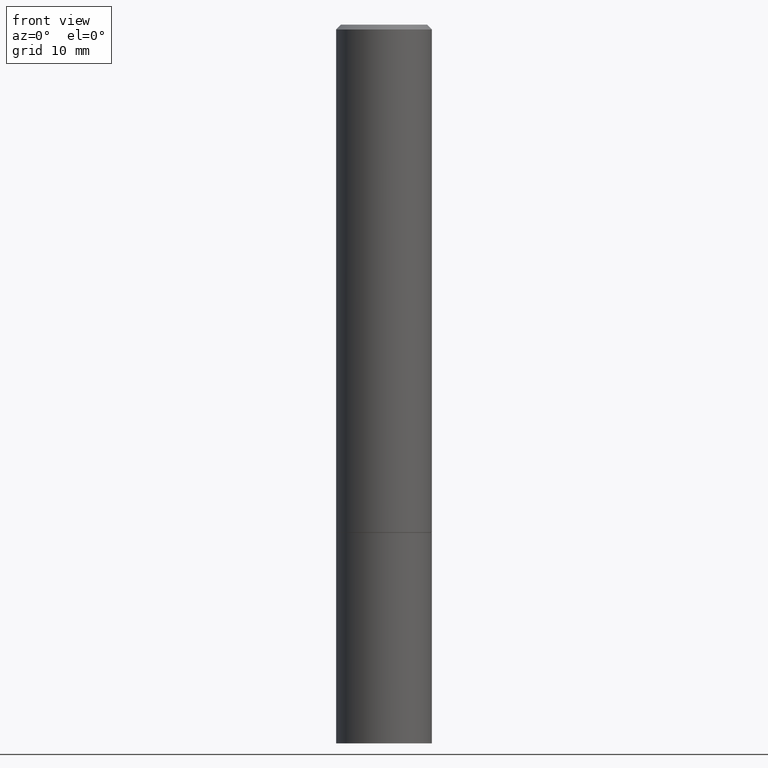
[diagram: clean part render]
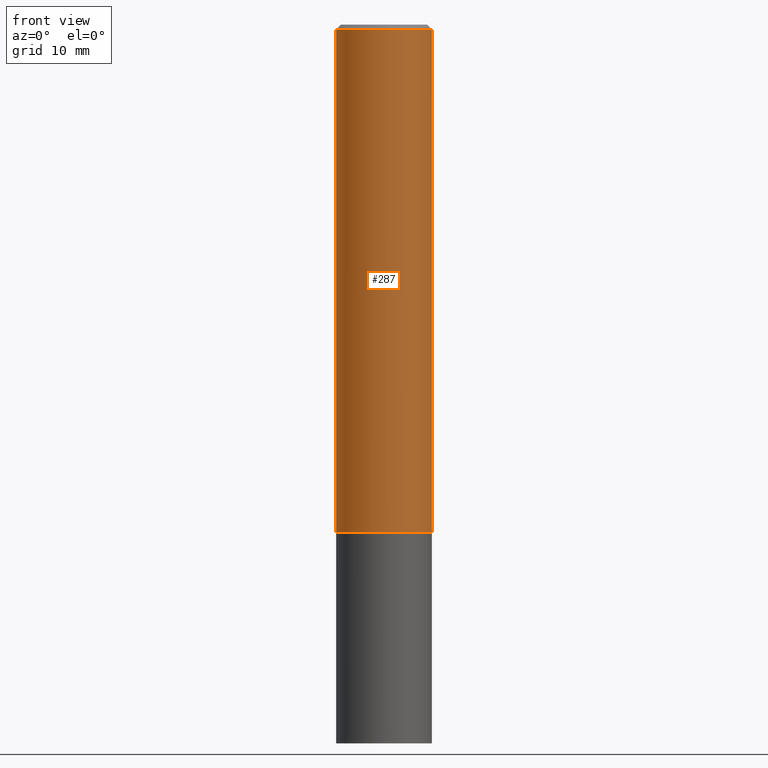
[diagram: same view with one face highlighted and labeled with its STEP entity id]
A machine part, front view. The second image highlights one B-rep face of the part: STEP entity #287.
In plain terms, the highlighted cylindrical surface (partial cylindrical patch) has radius 5 mm, axis along (-0, 0, 1).
Its self-contained STEP definition (entity closure, byte-faithful):
#4 = AXIS2_PLACEMENT_3D ( 'NONE', #364, #29, #107 ) ;
#13 = ORIENTED_EDGE ( 'NONE', *, *, #344, .T. ) ;
#29 = DIRECTION ( 'NONE',  ( -2.445468806185136597E-29, 3.491481338843145583E-15, 1.000000000000000000 ) ) ;
#33 = CARTESIAN_POINT ( 'NONE',  ( 0.1968499999999997752, -1.420318657638187347E-15, -0.02000000000000001776 ) ) ;
#36 = DIRECTION ( 'NONE',  ( 1.000000000000000000, -6.982962677686267499E-15, 0.000000000000000000 ) ) ;
#39 = CARTESIAN_POINT ( 'NONE',  ( 0.1968499999999999139, -1.374596203102541017E-15, 9.598753983154295253E-30 ) ) ;
#52 = VERTEX_POINT ( 'NONE', #230 ) ;
#60 = DIRECTION ( 'NONE',  ( -2.445468806185136877E-29, 3.491481338843145188E-15, 1.000000000000000000 ) ) ;
#62 = AXIS2_PLACEMENT_3D ( 'NONE', #186, #216, #96 ) ;
#77 = EDGE_CURVE ( 'NONE', #193, #276, #338, .T. ) ;
#96 = DIRECTION ( 'NONE',  ( 1.000000000000000000, -6.982962677686266711E-15, 4.876176775795935793E-29 ) ) ;
#107 = DIRECTION ( 'NONE',  ( 1.000000000000000000, -6.982962677686266711E-15, 0.000000000000000000 ) ) ;
#114 = CIRCLE ( 'NONE', #245, 0.1968500000000000250 ) ;
#116 = CARTESIAN_POINT ( 'NONE',  ( -0.1968499999999999139, 1.398703375343756604E-15, -9.682923725166778072E-30 ) ) ;
#131 = ORIENTED_EDGE ( 'NONE', *, *, #167, .F. ) ;
#144 = CARTESIAN_POINT ( 'NONE',  ( -0.1968499999999997752, 1.304766576325677127E-15, -0.02000000000000001776 ) ) ;
#147 = LINE ( 'NONE', #116, #281 ) ;
#154 = ORIENTED_EDGE ( 'NONE', *, *, #77, .F. ) ;
#167 = EDGE_CURVE ( 'NONE', #354, #193, #147, .T. ) ;
#182 = FACE_OUTER_BOUND ( 'NONE', #183, .T. ) ;
#183 = EDGE_LOOP ( 'NONE', ( #131, #273, #13, #154 ) ) ;
#186 = CARTESIAN_POINT ( 'NONE',  ( 0.000000000000000000, 0.000000000000000000, 0.000000000000000000 ) ) ;
#193 = VERTEX_POINT ( 'NONE', #144 ) ;
#201 = EDGE_CURVE ( 'NONE', #354, #52, #114, .T. ) ;
#216 = DIRECTION ( 'NONE',  ( -2.445468806185136597E-29, 3.491481338843145583E-15, 1.000000000000000000 ) ) ;
#230 = CARTESIAN_POINT ( 'NONE',  ( 0.1968500000000000250, -8.656778831527691107E-15, -2.085699999999999665 ) ) ;
#232 = CARTESIAN_POINT ( 'NONE',  ( 5.100514289060338336E-29, -7.282182628425147921E-15, -2.085699999999999665 ) ) ;
#234 = VECTOR ( 'NONE', #272, 39.37007874015748143 ) ;
#245 = AXIS2_PLACEMENT_3D ( 'NONE', #232, #294, #36 ) ;
#248 = CARTESIAN_POINT ( 'NONE',  ( -0.1968500000000000250, -2.277302752257247033E-15, -2.085699999999999665 ) ) ;
#272 = DIRECTION ( 'NONE',  ( -2.445468806185136877E-29, 3.491481338843145188E-15, 1.000000000000000000 ) ) ;
#273 = ORIENTED_EDGE ( 'NONE', *, *, #201, .T. ) ;
#276 = VERTEX_POINT ( 'NONE', #33 ) ;
#281 = VECTOR ( 'NONE', #60, 39.37007874015748143 ) ;
#287 = ADVANCED_FACE ( 'NONE', ( #182 ), #297, .T. ) ;
#294 = DIRECTION ( 'NONE',  ( -2.445468806185136597E-29, 3.491481338843145583E-15, 1.000000000000000000 ) ) ;
#297 = CYLINDRICAL_SURFACE ( 'NONE', #62, 0.1968499999999999139 ) ;
#320 = LINE ( 'NONE', #39, #234 ) ;
#338 = CIRCLE ( 'NONE', #4, 0.1968499999999997752 ) ;
#344 = EDGE_CURVE ( 'NONE', #52, #276, #320, .T. ) ;
#354 = VERTEX_POINT ( 'NONE', #248 ) ;
#364 = CARTESIAN_POINT ( 'NONE',  ( 4.890937612370276662E-31, -6.982962677686296539E-17, -0.02000000000000001776 ) ) ;